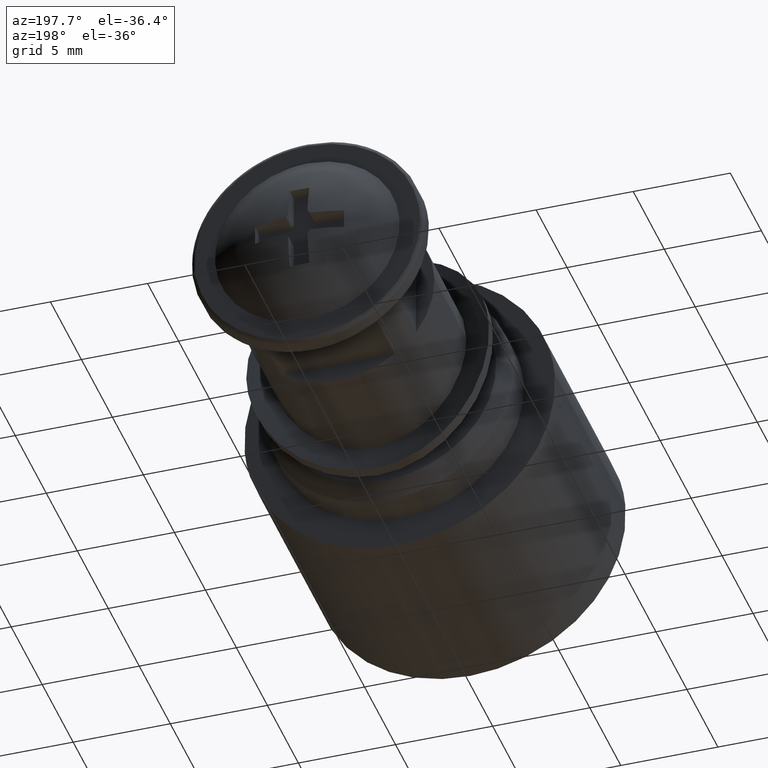
[diagram: clean part render]
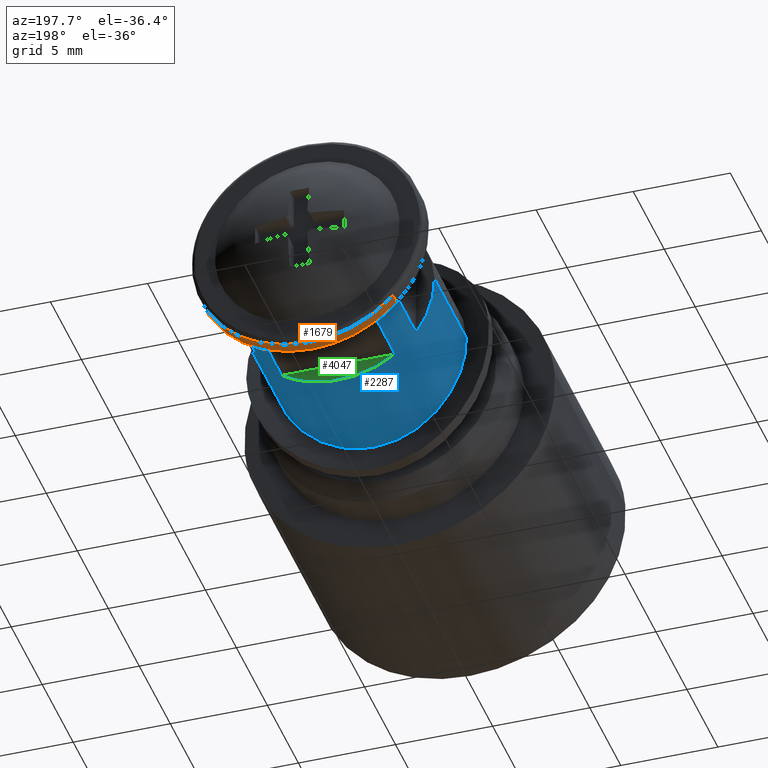
[diagram: same view with three faces highlighted in distinct colors, each labeled with its STEP entity id]
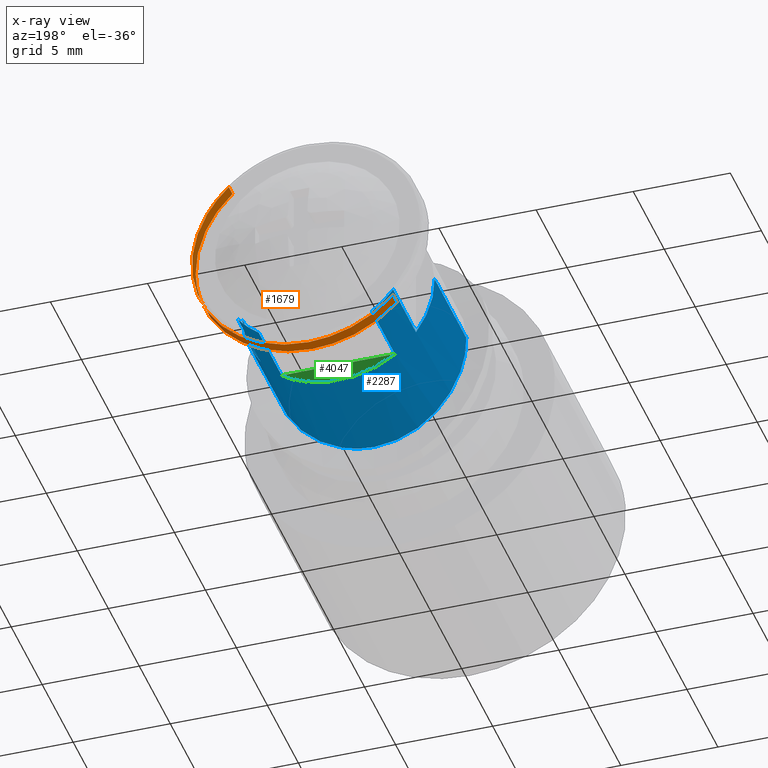
[diagram: x-ray of the same camera — body ghosted, the three highlighted faces saturated]
A machine part, auxiliary view with three faces highlighted in distinct colors.
The next image is the same camera in x-ray (body ghosted, the three faces saturated) — at least one of them is partly hidden behind the body in this view.
Their STEP definitions:

[orange] entity #1679 — the highlighted face is a freeform B-spline surface patch.
#1454=CARTESIAN_POINT('',(4.108910775202912,14.700000888947390,4.372282660263107));
#1455=VERTEX_POINT('',#1454);
#1486=CARTESIAN_POINT('',(-4.352246563106966,14.700000889071690,-4.130127513012135));
#1487=VERTEX_POINT('',#1486);
#1501=CARTESIAN_POINT('',(-4.352246561536994,14.100000860448860,-4.130127514666539));
#1502=VERTEX_POINT('',#1501);
#1503=CARTESIAN_POINT('',(-4.352246563106966,14.700000889071690,-4.130127513012135));
#1504=CARTESIAN_POINT('',(-4.352246561536994,14.100000860448860,-4.130127514666539));
#1505=QUASI_UNIFORM_CURVE('',1,(#1503,#1504),.UNSPECIFIED.,.F.,.U.);
#1506=EDGE_CURVE('',#1487,#1502,#1505,.T.);
#1540=CARTESIAN_POINT('',(4.108910779256311,14.100000860448860,4.372282656453871));
#1541=VERTEX_POINT('',#1540);
#1555=CARTESIAN_POINT('',(4.108910775202912,14.700000888947390,4.372282660263107));
#1556=CARTESIAN_POINT('',(4.108910779256311,14.100000860448860,4.372282656453871));
#1557=QUASI_UNIFORM_CURVE('',1,(#1555,#1556),.UNSPECIFIED.,.F.,.U.);
#1558=EDGE_CURVE('',#1455,#1541,#1557,.T.);
#1563=CARTESIAN_POINT('',(-4.352246432794307,14.715000890085690,-4.130127650333031));
#1564=CARTESIAN_POINT('',(-0.222118782461276,14.715000890085683,-8.482374083127338));
#1565=CARTESIAN_POINT('',(4.130127650333031,14.715000890085690,-4.352246432794307));
#1566=CARTESIAN_POINT('',(8.482374083127338,14.715000890085683,-0.222118782461276));
#1567=CARTESIAN_POINT('',(4.352246432794307,14.715000890085690,4.130127650333031));
#1568=CARTESIAN_POINT('',(4.234043953864628,14.715000890085690,4.254687073388070));
#1569=CARTESIAN_POINT('',(4.108911111636160,14.715000890085694,4.372282344095486));
#1570=CARTESIAN_POINT('',(-4.352246432794307,14.084625859144850,-4.130127650333031));
#1571=CARTESIAN_POINT('',(-0.222118782461276,14.084625859144850,-8.482374083127338));
#1572=CARTESIAN_POINT('',(4.130127650333031,14.084625859144850,-4.352246432794307));
#1573=CARTESIAN_POINT('',(8.482374083127338,14.084625859144850,-0.222118782461276));
#1574=CARTESIAN_POINT('',(4.352246432794307,14.084625859144850,4.130127650333031));
#1575=CARTESIAN_POINT('',(4.234043953864628,14.084625859144856,4.254687073388070));
#1576=CARTESIAN_POINT('',(4.108911111636160,14.084625859144852,4.372282344095486));
#1584=(BOUNDED_SURFACE()B_SPLINE_SURFACE(2,1,((#1563,#1570),(#1564,#1571),(#1565,#1572),(#1566,#1573),(#1567,#1574),(#1568,#1575),(#1569,#1576)),.UNSPECIFIED.,.F.,.F.,.U.)B_SPLINE_SURFACE_WITH_KNOTS((3,2,2,3),(2,2),(0.0,9.941125969132356,19.882251938264709,20.279896977030010),(0.0,1.0),.UNSPECIFIED.)GEOMETRIC_REPRESENTATION_ITEM()RATIONAL_B_SPLINE_SURFACE(((1.0,1.0),(0.707106781186548,0.707106781186548),(1.0,1.0),(0.707106781186548,0.707106781186548),(1.0,1.0),(0.988284271247462,0.988284271247462),(0.977505800795127,0.977505800795127)))REPRESENTATION_ITEM('')SURFACE());
#1585=CARTESIAN_POINT('',(5.959870115788959,14.700000889349440,-0.692785408869117));
#1586=VERTEX_POINT('',#1585);
#1587=CARTESIAN_POINT('',(5.959870115788959,14.700000889349445,-0.692785408869117));
#1588=CARTESIAN_POINT('',(6.000000284984680,14.700000888947404,-0.347554991096384));
#1589=CARTESIAN_POINT('',(6.000000284984680,14.700000888947400,0.0));
#1590=CARTESIAN_POINT('',(6.000000284984680,14.700000888947397,2.595106418634504));
#1591=CARTESIAN_POINT('',(4.108910775202912,14.700000888947388,4.372282660263106));
#1599=(BOUNDED_CURVE()B_SPLINE_CURVE(2,(#1587,#1588,#1589,#1590,#1591),.UNSPECIFIED.,.F.,.U.)B_SPLINE_CURVE_WITH_KNOTS((3,2,3),(0.229999999999936,0.250000000000000,0.379684514204962),.UNSPECIFIED.)CURVE()GEOMETRIC_REPRESENTATION_ITEM()RATIONAL_B_SPLINE_CURVE((0.956886118190533,0.976568542494848,1.0,0.848065140816999,0.853759068865573))REPRESENTATION_ITEM(''));
#1600=EDGE_CURVE('',#1586,#1455,#1599,.T.);
#1601=ORIENTED_EDGE('',*,*,#1600,.T.);
#1602=ORIENTED_EDGE('',*,*,#1558,.T.);
#1603=CARTESIAN_POINT('',(5.999526550184908,14.100000859913139,-0.075396242894492));
#1604=VERTEX_POINT('',#1603);
#1605=CARTESIAN_POINT('',(5.999526550184908,14.100000859913138,-0.075396242894492));
#1606=CARTESIAN_POINT('',(6.000000284984680,14.100000860448857,-0.037699609755222));
#1607=CARTESIAN_POINT('',(6.000000284984680,14.100000860448860,0.0));
#1608=CARTESIAN_POINT('',(6.000000284984680,14.100000860448858,2.595106412031524));
#1609=CARTESIAN_POINT('',(4.108910779256311,14.100000860448857,4.372282656453871));
#1617=(BOUNDED_CURVE()B_SPLINE_CURVE(2,(#1605,#1606,#1607,#1608,#1609),.UNSPECIFIED.,.F.,.U.)B_SPLINE_CURVE_WITH_KNOTS((3,2,3),(0.247784295920952,0.250000000000000,0.379684513925127),.UNSPECIFIED.)CURVE()GEOMETRIC_REPRESENTATION_ITEM()RATIONAL_B_SPLINE_CURVE((0.994854295642225,0.997404141201398,1.0,0.848065141144847,0.853759068841000))REPRESENTATION_ITEM(''));
#1618=EDGE_CURVE('',#1604,#1541,#1617,.T.);
#1619=ORIENTED_EDGE('',*,*,#1618,.F.);
#1620=CARTESIAN_POINT('',(0.0,14.100000860448860,-6.000000284984680));
#1621=VERTEX_POINT('',#1620);
#1622=CARTESIAN_POINT('',(0.0,14.100000860448860,-6.000000284984680));
#1623=CARTESIAN_POINT('',(5.925071860843488,14.100000860448855,-6.000000284984680));
#1624=CARTESIAN_POINT('',(5.999526550184908,14.100000859913141,-0.075396242894492));
#1632=(BOUNDED_CURVE()B_SPLINE_CURVE(2,(#1622,#1623,#1624),.UNSPECIFIED.,.F.,.U.)B_SPLINE_CURVE_WITH_KNOTS((3,3),(0.0,0.247784295920952),.UNSPECIFIED.)CURVE()GEOMETRIC_REPRESENTATION_ITEM()RATIONAL_B_SPLINE_CURVE((1.0,0.709702639985150,0.994854295642225))REPRESENTATION_ITEM(''));
#1633=EDGE_CURVE('',#1621,#1604,#1632,.T.);
#1634=ORIENTED_EDGE('',*,*,#1633,.F.);
#1635=CARTESIAN_POINT('',(-4.352246561536994,14.100000860448857,-4.130127514666538));
#1636=CARTESIAN_POINT('',(-2.577803779792631,14.100000860448864,-6.000000284984680));
#1637=CARTESIAN_POINT('',(0.0,14.100000860448860,-6.000000284984680));
#1645=(BOUNDED_CURVE()B_SPLINE_CURVE(2,(#1635,#1636,#1637),.UNSPECIFIED.,.F.,.U.)B_SPLINE_CURVE_WITH_KNOTS((3,3),(0.871049517250601,1.0),.UNSPECIFIED.)CURVE()GEOMETRIC_REPRESENTATION_ITEM()RATIONAL_B_SPLINE_CURVE((0.853699662066157,0.848925112159919,1.0))REPRESENTATION_ITEM(''));
#1646=EDGE_CURVE('',#1502,#1621,#1645,.T.);
#1647=ORIENTED_EDGE('',*,*,#1646,.F.);
#1648=ORIENTED_EDGE('',*,*,#1506,.F.);
#1649=CARTESIAN_POINT('',(0.0,14.700000888947400,-6.000000284984680));
#1650=VERTEX_POINT('',#1649);
#1651=CARTESIAN_POINT('',(-4.352246563106966,14.700000889071687,-4.130127513012136));
#1652=CARTESIAN_POINT('',(-2.577803782494384,14.700000888947400,-6.000000284984680));
#1653=CARTESIAN_POINT('',(0.0,14.700000888947400,-6.000000284984680));
#1661=(BOUNDED_CURVE()B_SPLINE_CURVE(2,(#1651,#1652,#1653),.UNSPECIFIED.,.F.,.U.)B_SPLINE_CURVE_WITH_KNOTS((3,3),(0.871049517135868,1.0),.UNSPECIFIED.)CURVE()GEOMETRIC_REPRESENTATION_ITEM()RATIONAL_B_SPLINE_CURVE((0.853699662074653,0.848925112025501,1.0))REPRESENTATION_ITEM(''));
#1662=EDGE_CURVE('',#1487,#1650,#1661,.T.);
#1663=ORIENTED_EDGE('',*,*,#1662,.T.);
#1664=CARTESIAN_POINT('',(0.0,14.700000888947400,-6.000000284984680));
#1665=CARTESIAN_POINT('',(5.342950458736100,14.700000888947400,-6.000000284984680));
#1666=CARTESIAN_POINT('',(5.959870115788959,14.700000889349438,-0.692785408869117));
#1674=(BOUNDED_CURVE()B_SPLINE_CURVE(2,(#1664,#1665,#1666),.UNSPECIFIED.,.F.,.U.)B_SPLINE_CURVE_WITH_KNOTS((3,3),(0.0,0.229999999999935),.UNSPECIFIED.)CURVE()GEOMETRIC_REPRESENTATION_ITEM()RATIONAL_B_SPLINE_CURVE((1.0,0.730538238691699,0.956886118190533))REPRESENTATION_ITEM(''));
#1675=EDGE_CURVE('',#1650,#1586,#1674,.T.);
#1676=ORIENTED_EDGE('',*,*,#1675,.T.);
#1677=EDGE_LOOP('',(#1601,#1602,#1619,#1634,#1647,#1648,#1663,#1676));
#1678=FACE_OUTER_BOUND('',#1677,.T.);
#1679=ADVANCED_FACE('',(#1678),#1584,.T.);

[blue] entity #2287 — the highlighted face is a freeform B-spline surface patch.
#1884=CARTESIAN_POINT('',(4.948303993660939,9.900000470224770,-0.129575900273581));
#1885=VERTEX_POINT('',#1884);
#1974=CARTESIAN_POINT('',(-4.948303993660939,9.900000470224770,0.129575900273581));
#1975=VERTEX_POINT('',#1974);
#1989=CARTESIAN_POINT('',(-4.948305246393370,4.761079796366543,0.129575397315485));
#1990=VERTEX_POINT('',#1989);
#1991=CARTESIAN_POINT('',(-4.948303993660939,9.900000470224770,0.129575900273581));
#1992=CARTESIAN_POINT('',(-4.948305246393370,4.761079796366543,0.129575397315485));
#1993=QUASI_UNIFORM_CURVE('',1,(#1991,#1992),.UNSPECIFIED.,.F.,.U.);
#1994=EDGE_CURVE('',#1975,#1990,#1993,.T.);
#2037=CARTESIAN_POINT('',(4.948310351755683,4.761077057137085,-0.129577683789318));
#2038=VERTEX_POINT('',#2037);
#2079=CARTESIAN_POINT('',(4.948303993660939,9.900000470224770,-0.129575900273581));
#2080=CARTESIAN_POINT('',(4.948310351755683,4.761077057137085,-0.129577683789318));
#2081=QUASI_UNIFORM_CURVE('',1,(#2079,#2080),.UNSPECIFIED.,.F.,.U.);
#2082=EDGE_CURVE('',#1885,#2038,#2081,.T.);
#2087=CARTESIAN_POINT('',(-4.948303993660809,13.837500635239120,0.129575900278499));
#2088=CARTESIAN_POINT('',(-5.077879893939309,13.837500635239119,-4.818728093382310));
#2089=CARTESIAN_POINT('',(-0.129575900278499,13.837500635239120,-4.948303993660809));
#2090=CARTESIAN_POINT('',(4.818728093382310,13.837500635239119,-5.077879893939309));
#2091=CARTESIAN_POINT('',(4.948303993660809,13.837500635239120,-0.129575900278499));
#2092=CARTESIAN_POINT('',(-4.948303993660809,3.856563585990148,0.129575900278499));
#2093=CARTESIAN_POINT('',(-5.077879893939309,3.856563585990148,-4.818728093382310));
#2094=CARTESIAN_POINT('',(-0.129575900278499,3.856563585990148,-4.948303993660809));
#2095=CARTESIAN_POINT('',(4.818728093382310,3.856563585990148,-5.077879893939309));
#2096=CARTESIAN_POINT('',(4.948303993660809,3.856563585990148,-0.129575900278499));
#2104=(BOUNDED_SURFACE()B_SPLINE_SURFACE(2,1,((#2087,#2092),(#2088,#2093),(#2089,#2094),(#2090,#2095),(#2091,#2096)),.UNSPECIFIED.,.F.,.F.,.U.)B_SPLINE_SURFACE_WITH_KNOTS((3,2,3),(2,2),(0.0,8.201428924534206,16.402857849068411),(0.0,9.980937049248972),.UNSPECIFIED.)GEOMETRIC_REPRESENTATION_ITEM()RATIONAL_B_SPLINE_SURFACE(((1.0,1.0),(0.707106781186548,0.707106781186548),(1.0,1.0),(0.707106781186548,0.707106781186548),(1.0,1.0)))REPRESENTATION_ITEM('')SURFACE());
#2105=CARTESIAN_POINT('',(4.000000189989706,9.900000470224770,-2.915904800862819));
#2106=VERTEX_POINT('',#2105);
#2107=CARTESIAN_POINT('',(4.000000189989703,9.900000470224770,-2.915904800862822));
#2108=CARTESIAN_POINT('',(4.907956563764939,9.900000470224770,-1.670382084713569));
#2109=CARTESIAN_POINT('',(4.948303993660939,9.900000470224770,-0.129575900273581));
#2117=(BOUNDED_CURVE()B_SPLINE_CURVE(2,(#2107,#2108,#2109),.UNSPECIFIED.,.F.,.U.)B_SPLINE_CURVE_WITH_KNOTS((3,3),(0.0,0.479909851063965),.UNSPECIFIED.)CURVE()GEOMETRIC_REPRESENTATION_ITEM()RATIONAL_B_SPLINE_CURVE((1.0,0.907896089189736,0.904195326618197))REPRESENTATION_ITEM(''));
#2118=EDGE_CURVE('',#2106,#1885,#2117,.T.);
#2119=ORIENTED_EDGE('',*,*,#2118,.T.);
#2120=ORIENTED_EDGE('',*,*,#2082,.T.);
#2121=CARTESIAN_POINT('',(-2.873136E-015,4.100001074996220,-4.950000235112370));
#2122=VERTEX_POINT('',#2121);
#2123=CARTESIAN_POINT('',(4.948310351755683,4.761077057137085,-0.129577683789318));
#2124=CARTESIAN_POINT('',(4.940986613711790,4.759071770860627,-0.411026496959566));
#2125=CARTESIAN_POINT('',(4.909786434065302,4.750556128288385,-0.689334127167372));
#2126=CARTESIAN_POINT('',(4.839304880303069,4.731768741596977,-1.044102880974095));
#2127=CARTESIAN_POINT('',(4.821524048380774,4.727050780747596,-1.123382537910685));
#2128=CARTESIAN_POINT('',(4.781950778158574,4.716626268544164,-1.281417520176779));
#2129=CARTESIAN_POINT('',(4.760106224572427,4.710906181875473,-1.360341331755924));
#2130=CARTESIAN_POINT('',(4.688792417166816,4.692393712552520,-1.595129609592023));
#2131=CARTESIAN_POINT('',(4.633929135934704,4.678346476237990,-1.747930105077475));
#2132=CARTESIAN_POINT('',(4.448157234860425,4.631901387716145,-2.195626584270830));
#2133=CARTESIAN_POINT('',(4.296275920417242,4.595198177424604,-2.479918218009932));
#2134=CARTESIAN_POINT('',(4.070695538143573,4.544726044625421,-2.817534576219279));
#2135=CARTESIAN_POINT('',(4.023688743829722,4.534384163581980,-2.884263792167435));
#2136=CARTESIAN_POINT('',(3.927027939912205,4.513529966539385,-3.014548428595566));
#2137=CARTESIAN_POINT('',(3.877273267129264,4.502994507578504,-3.078266638579570));
#2138=CARTESIAN_POINT('',(3.723803139573523,4.471181448026235,-3.265236611626094));
#2139=CARTESIAN_POINT('',(3.615892078769577,4.449697742791706,-3.384314178847923));
#2140=CARTESIAN_POINT('',(3.388965838060873,4.406786545050521,-3.611533209733573));
#2141=CARTESIAN_POINT('',(3.269950857463064,4.385357993296387,-3.719674673846959));
#2142=CARTESIAN_POINT('',(3.082913348931569,4.353705794419616,-3.873583493033434));
#2143=CARTESIAN_POINT('',(3.019145678134428,4.343236881353678,-3.923499921660921));
#2144=CARTESIAN_POINT('',(2.888701402859215,4.322539730175175,-4.020509675064527));
#2145=CARTESIAN_POINT('',(2.822084776375118,4.312323602883557,-4.067541727343875));
#2146=CARTESIAN_POINT('',(2.485358725374185,4.262580571406807,-4.293088318126134));
#2147=CARTESIAN_POINT('',(2.201653531311590,4.226620169784019,-4.445160174046160));
#2148=CARTESIAN_POINT('',(1.754619742457440,4.181243182488996,-4.631399898786261));
#2149=CARTESIAN_POINT('',(1.602004055703563,4.167543575218435,-4.686450254992662));
#2150=CARTESIAN_POINT('',(1.367434241071543,4.149501171082719,-4.758078031569181));
#2151=CARTESIAN_POINT('',(1.288436639799525,4.143918637675492,-4.780071733963440));
#2152=CARTESIAN_POINT('',(1.130222285729188,4.133747451751860,-4.819932880885465));
#2153=CARTESIAN_POINT('',(1.050810580674656,4.129143338901855,-4.837861741604895));
#2154=CARTESIAN_POINT('',(0.652242572668183,4.108583160961826,-4.917602979983179));
#2155=CARTESIAN_POINT('',(0.328565788382593,4.100000935775849,-4.950000228498474));
#2156=CARTESIAN_POINT('',(-2.873136E-015,4.100001074996220,-4.950000235112370));
#2157=B_SPLINE_CURVE_WITH_KNOTS('',3,(#2123,#2124,#2125,#2126,#2127,#2128,#2129,#2130,#2131,#2132,#2133,#2134,#2135,#2136,#2137,#2138,#2139,#2140,#2141,#2142,#2143,#2144,#2145,#2146,#2147,#2148,#2149,#2150,#2151,#2152,#2153,#2154,#2155,#2156),.UNSPECIFIED.,.F.,.U.,(4,2,2,2,2,2,2,2,2,2,2,2,2,2,2,2,4),(0.754216269718083,0.781250000000001,0.789062500000001,0.796875000000001,0.812500000000001,0.843750000000001,0.851562500000001,0.859375000000001,0.875000000000001,0.890625000000001,0.898437500000001,0.906250000000001,0.937500000000000,0.953125000000000,0.960937500000000,0.968750000000000,1.0),.UNSPECIFIED.);
#2158=EDGE_CURVE('',#2038,#2122,#2157,.T.);
#2159=ORIENTED_EDGE('',*,*,#2158,.T.);
#2160=CARTESIAN_POINT('',(-2.873136E-015,4.100001074996220,-4.950000235112370));
#2161=CARTESIAN_POINT('',(-0.328565964730112,4.100001027489814,-4.950000236489327));
#2162=CARTESIAN_POINT('',(-0.651361021872853,4.108579148194152,-4.917613356060764));
#2163=CARTESIAN_POINT('',(-1.127315007736055,4.133069735135753,-4.822637807386720));
#2164=CARTESIAN_POINT('',(-1.284583341828626,4.143172801666386,-4.783188049033757));
#2165=CARTESIAN_POINT('',(-1.518375973029656,4.161090684383371,-4.712077168076582));
#2166=CARTESIAN_POINT('',(-1.596168320683467,4.167543569021191,-4.686300815091279));
#2167=CARTESIAN_POINT('',(-1.749861196526772,4.181238452968794,-4.631107241077547));
#2168=CARTESIAN_POINT('',(-1.825697454729411,4.188471236909019,-4.601728102420717));
#2169=CARTESIAN_POINT('',(-2.199948744565160,4.226398233072429,-4.446106947767190));
#2170=CARTESIAN_POINT('',(-2.483715533067828,4.262375873896836,-4.293949765354657));
#2171=CARTESIAN_POINT('',(-2.819333545739560,4.311908775093127,-4.069444672087003));
#2172=CARTESIAN_POINT('',(-2.885493838779973,4.322043476438775,-4.022811968678513));
#2173=CARTESIAN_POINT('',(-3.015863352562300,4.342705499490199,-3.926023278196172));
#2174=CARTESIAN_POINT('',(-3.080145461248453,4.353246961443333,-3.875793360972473));
#2175=CARTESIAN_POINT('',(-3.268026889441931,4.385016160283634,-3.721395271353510));
#2176=CARTESIAN_POINT('',(-3.387349488987134,4.406491339780343,-3.613055964026475));
#2177=CARTESIAN_POINT('',(-3.728086211945020,4.470895298449523,-3.272173037034955));
#2178=CARTESIAN_POINT('',(-3.932444805318943,4.513819716893882,-3.023929078925248));
#2179=CARTESIAN_POINT('',(-4.158598099231174,4.564388526829948,-2.686106573366825));
#2180=CARTESIAN_POINT('',(-4.202284198393446,4.574332886229210,-2.617226965931525));
#2181=CARTESIAN_POINT('',(-4.285744896275753,4.593618920607417,-2.478196881827906));
#2182=CARTESIAN_POINT('',(-4.325643365804433,4.602988126959336,-2.407865556534013));
#2183=CARTESIAN_POINT('',(-4.439925455550775,4.630182888766859,-2.194448496448727));
#2184=CARTESIAN_POINT('',(-4.577892191126136,4.664007802772824,-1.903442041390677));
#2185=CARTESIAN_POINT('',(-4.687255617988031,4.692000718318405,-1.599526171407022));
#2186=CARTESIAN_POINT('',(-4.758306048456686,4.710437722315769,-1.366603525142356));
#2187=CARTESIAN_POINT('',(-4.780157420098487,4.716156956166383,-1.288130201478116));
#2188=CARTESIAN_POINT('',(-4.820110946555968,4.726677894449491,-1.129475324724241));
#2189=CARTESIAN_POINT('',(-4.838158335720857,4.731465238629366,-1.049458354356825));
#2190=CARTESIAN_POINT('',(-4.917999573238086,4.752742957534818,-0.649709593032368));
#2191=CARTESIAN_POINT('',(-4.949790080291920,4.761484558713900,-0.327588910886452));
#2192=CARTESIAN_POINT('',(-4.950026327510380,4.761548811189310,0.041033379816533));
#2193=CARTESIAN_POINT('',(-4.949464052600132,4.761395346895137,0.085282730855886));
#2194=CARTESIAN_POINT('',(-4.948305246393370,4.761079796366543,0.129575397315485));
#2195=B_SPLINE_CURVE_WITH_KNOTS('',3,(#2160,#2161,#2162,#2163,#2164,#2165,#2166,#2167,#2168,#2169,#2170,#2171,#2172,#2173,#2174,#2175,#2176,#2177,#2178,#2179,#2180,#2181,#2182,#2183,#2184,#2185,#2186,#2187,#2188,#2189,#2190,#2191,#2192,#2193,#2194),.UNSPECIFIED.,.F.,.U.,(4,2,2,2,2,2,2,2,2,2,2,2,1,2,2,2,2,4),(0.0,0.031250000000000,0.046875000000000,0.054687500000000,0.062500000000000,0.093750000000000,0.101562500000000,0.109375000000000,0.125000000000000,0.156250000000000,0.164062500000000,0.171875000000000,0.187500000000000,0.203125000000000,0.210937500000000,0.218750000000000,0.250000000000000,0.254258274429694),.UNSPECIFIED.);
#2196=EDGE_CURVE('',#2122,#1990,#2195,.T.);
#2197=ORIENTED_EDGE('',*,*,#2196,.T.);
#2198=ORIENTED_EDGE('',*,*,#1994,.F.);
#2199=CARTESIAN_POINT('',(-4.000000189989706,9.900000470224770,-2.915904800862815));
#2200=VERTEX_POINT('',#2199);
#2201=CARTESIAN_POINT('',(-4.948303993660939,9.900000470224770,0.129575900273581));
#2202=CARTESIAN_POINT('',(-4.992404070670180,9.900000470224772,-1.554538095717364));
#2203=CARTESIAN_POINT('',(-4.000000189989709,9.900000470224770,-2.915904800862814));
#2211=(BOUNDED_CURVE()B_SPLINE_CURVE(2,(#2201,#2202,#2203),.UNSPECIFIED.,.F.,.U.)B_SPLINE_CURVE_WITH_KNOTS((3,3),(0.479909851063965,1.0),.UNSPECIFIED.)CURVE()GEOMETRIC_REPRESENTATION_ITEM()RATIONAL_B_SPLINE_CURVE((0.904195326618197,0.900184718891055,1.0))REPRESENTATION_ITEM(''));
#2212=EDGE_CURVE('',#1975,#2200,#2211,.T.);
#2213=ORIENTED_EDGE('',*,*,#2212,.T.);
#2214=CARTESIAN_POINT('',(-4.000000189989706,13.600000645964901,-2.915904800862815));
#2215=VERTEX_POINT('',#2214);
#2216=CARTESIAN_POINT('',(-4.000000189989706,13.600000645964901,-2.915904800862815));
#2217=CARTESIAN_POINT('',(-4.000000189989706,9.900000470224770,-2.915904800862815));
#2218=QUASI_UNIFORM_CURVE('',1,(#2216,#2217),.UNSPECIFIED.,.F.,.U.);
#2219=EDGE_CURVE('',#2215,#2200,#2218,.T.);
#2220=ORIENTED_EDGE('',*,*,#2219,.F.);
#2221=CARTESIAN_POINT('',(-2.915904800862819,13.600000645964840,-4.000000189989706));
#2222=VERTEX_POINT('',#2221);
#2223=CARTESIAN_POINT('',(-4.000000189989706,13.600000645964901,-2.915904800862815));
#2224=CARTESIAN_POINT('',(-3.542920609814816,13.600000645964846,-3.542920609814806));
#2225=CARTESIAN_POINT('',(-2.915904800862822,13.600000645964840,-4.000000189989703));
#2233=(BOUNDED_CURVE()B_SPLINE_CURVE(2,(#2223,#2224,#2225),.UNSPECIFIED.,.F.,.U.)CURVE()GEOMETRIC_REPRESENTATION_ITEM()QUASI_UNIFORM_CURVE()RATIONAL_B_SPLINE_CURVE((1.0,0.987935976726816,1.0))REPRESENTATION_ITEM(''));
#2234=EDGE_CURVE('',#2215,#2222,#2233,.T.);
#2235=ORIENTED_EDGE('',*,*,#2234,.T.);
#2236=CARTESIAN_POINT('',(-2.915904800862819,9.900000470224770,-4.000000189989706));
#2237=VERTEX_POINT('',#2236);
#2238=CARTESIAN_POINT('',(-2.915904800862819,13.600000645964840,-4.000000189989706));
#2239=CARTESIAN_POINT('',(-2.915904800862819,9.900000470224770,-4.000000189989706));
#2240=QUASI_UNIFORM_CURVE('',1,(#2238,#2239),.UNSPECIFIED.,.F.,.U.);
#2241=EDGE_CURVE('',#2222,#2237,#2240,.T.);
#2242=ORIENTED_EDGE('',*,*,#2241,.T.);
#2243=CARTESIAN_POINT('',(2.915904800862819,9.900000470224770,-4.000000189989706));
#2244=VERTEX_POINT('',#2243);
#2245=CARTESIAN_POINT('',(-2.915904800862820,9.900000470224770,-4.000000189989705));
#2246=CARTESIAN_POINT('',(-8.673617E-016,9.900000470224768,-6.125625290951694));
#2247=CARTESIAN_POINT('',(2.915904800862819,9.900000470224770,-4.000000189989706));
#2255=(BOUNDED_CURVE()B_SPLINE_CURVE(2,(#2245,#2246,#2247),.UNSPECIFIED.,.F.,.U.)CURVE()GEOMETRIC_REPRESENTATION_ITEM()QUASI_UNIFORM_CURVE()RATIONAL_B_SPLINE_CURVE((1.0,0.808080808080790,1.0))REPRESENTATION_ITEM(''));
#2256=EDGE_CURVE('',#2237,#2244,#2255,.T.);
#2257=ORIENTED_EDGE('',*,*,#2256,.T.);
#2258=CARTESIAN_POINT('',(2.915904800862819,13.600000645964901,-4.000000189989706));
#2259=VERTEX_POINT('',#2258);
#2260=CARTESIAN_POINT('',(2.915904800862819,13.600000645964901,-4.000000189989706));
#2261=CARTESIAN_POINT('',(2.915904800862819,9.900000470224770,-4.000000189989706));
#2262=QUASI_UNIFORM_CURVE('',1,(#2260,#2261),.UNSPECIFIED.,.F.,.U.);
#2263=EDGE_CURVE('',#2259,#2244,#2262,.T.);
#2264=ORIENTED_EDGE('',*,*,#2263,.F.);
#2265=CARTESIAN_POINT('',(4.000000189989706,13.600000645964840,-2.915904800862819));
#2266=VERTEX_POINT('',#2265);
#2267=CARTESIAN_POINT('',(2.915904800862819,13.600000645964901,-4.000000189989706));
#2268=CARTESIAN_POINT('',(3.542920609814811,13.600000645964846,-3.542920609814811));
#2269=CARTESIAN_POINT('',(4.000000189989706,13.600000645964840,-2.915904800862819));
#2277=(BOUNDED_CURVE()B_SPLINE_CURVE(2,(#2267,#2268,#2269),.UNSPECIFIED.,.F.,.U.)CURVE()GEOMETRIC_REPRESENTATION_ITEM()QUASI_UNIFORM_CURVE()RATIONAL_B_SPLINE_CURVE((1.0,0.987935976726816,1.0))REPRESENTATION_ITEM(''));
#2278=EDGE_CURVE('',#2259,#2266,#2277,.T.);
#2279=ORIENTED_EDGE('',*,*,#2278,.T.);
#2280=CARTESIAN_POINT('',(4.000000189989706,13.600000645964840,-2.915904800862819));
#2281=CARTESIAN_POINT('',(4.000000189989706,9.900000470224770,-2.915904800862819));
#2282=QUASI_UNIFORM_CURVE('',1,(#2280,#2281),.UNSPECIFIED.,.F.,.U.);
#2283=EDGE_CURVE('',#2266,#2106,#2282,.T.);
#2284=ORIENTED_EDGE('',*,*,#2283,.T.);
#2285=EDGE_LOOP('',(#2119,#2120,#2159,#2197,#2198,#2213,#2220,#2235,#2242,#2257,#2264,#2279,#2284));
#2286=FACE_OUTER_BOUND('',#2285,.T.);
#2287=ADVANCED_FACE('',(#2286),#2104,.T.);

[green] entity #4047 — the highlighted face is a freeform B-spline surface patch.
#2236=CARTESIAN_POINT('',(-2.915904800862819,9.900000470224770,-4.000000189989706));
#2237=VERTEX_POINT('',#2236);
#2243=CARTESIAN_POINT('',(2.915904800862819,9.900000470224770,-4.000000189989706));
#2244=VERTEX_POINT('',#2243);
#2245=CARTESIAN_POINT('',(-2.915904800862820,9.900000470224770,-4.000000189989705));
#2246=CARTESIAN_POINT('',(-8.673617E-016,9.900000470224768,-6.125625290951694));
#2247=CARTESIAN_POINT('',(2.915904800862819,9.900000470224770,-4.000000189989706));
#2255=(BOUNDED_CURVE()B_SPLINE_CURVE(2,(#2245,#2246,#2247),.UNSPECIFIED.,.F.,.U.)CURVE()GEOMETRIC_REPRESENTATION_ITEM()QUASI_UNIFORM_CURVE()RATIONAL_B_SPLINE_CURVE((1.0,0.808080808080790,1.0))REPRESENTATION_ITEM(''));
#2256=EDGE_CURVE('',#2237,#2244,#2255,.T.);
#4034=CARTESIAN_POINT('',(-3.207203679165836,9.900000470224780,-3.952547484464937));
#4035=CARTESIAN_POINT('',(3.207203835587159,9.900000470224780,-3.952547484464937));
#4036=CARTESIAN_POINT('',(-3.207203679165836,9.900000470224780,-4.997452770763882));
#4037=CARTESIAN_POINT('',(3.207203835587159,9.900000470224780,-4.997452770763882));
#4038=B_SPLINE_SURFACE_WITH_KNOTS('',1,1,((#4034,#4036),(#4035,#4037)),.UNSPECIFIED.,.F.,.F.,.U.,(2,2),(2,2),(0.0,6.414407514752996),(0.041708155025542,0.958291695962846),.UNSPECIFIED.);
#4039=CARTESIAN_POINT('',(2.915904800862819,9.900000470224770,-4.000000189989706));
#4040=CARTESIAN_POINT('',(-2.915904800862819,9.900000470224770,-4.000000189989706));
#4041=QUASI_UNIFORM_CURVE('',1,(#4039,#4040),.UNSPECIFIED.,.F.,.U.);
#4042=EDGE_CURVE('',#2244,#2237,#4041,.T.);
#4043=ORIENTED_EDGE('',*,*,#4042,.F.);
#4044=ORIENTED_EDGE('',*,*,#2256,.F.);
#4045=EDGE_LOOP('',(#4043,#4044));
#4046=FACE_OUTER_BOUND('',#4045,.T.);
#4047=ADVANCED_FACE('',(#4046),#4038,.T.);